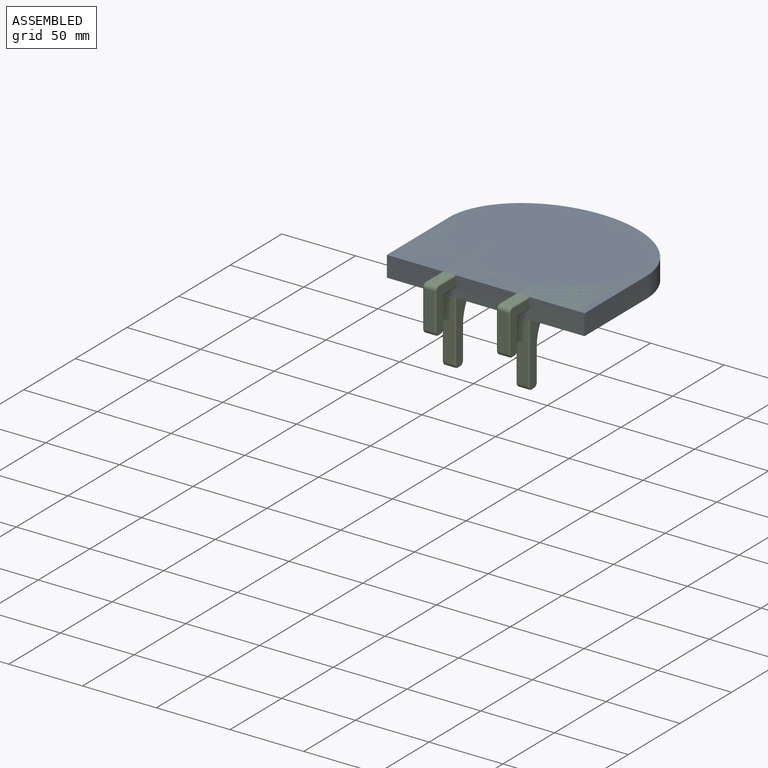
[diagram: assembled view]
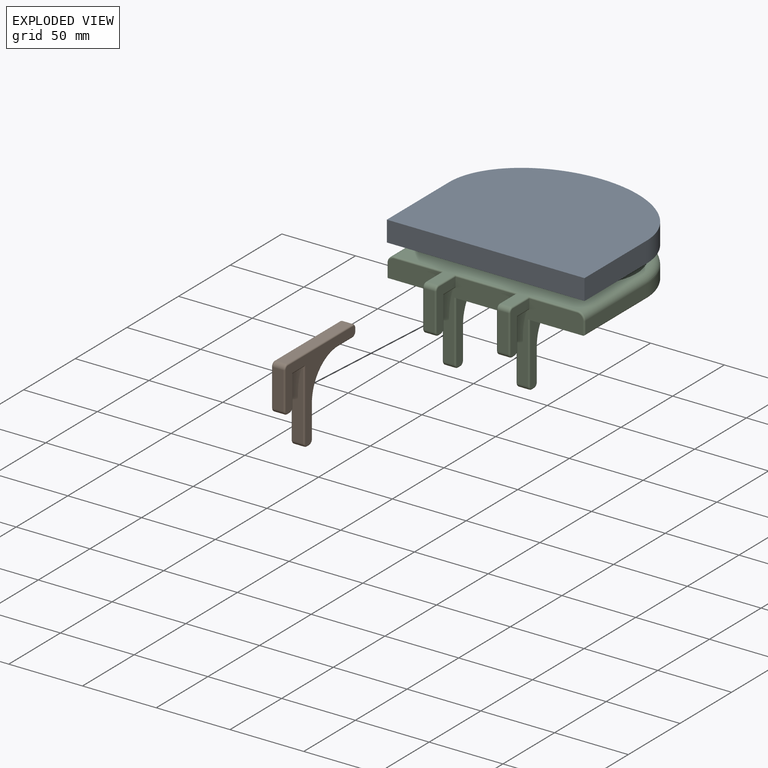
[diagram: exploded view]
GUIDED TOUR — FREECAD ASSEMBLY "PopBracket"

This assembly has 3 components, labeled P0..P2 below (a component is one placed body or linked part; the same part can appear more than once), held together by 0 modeled joints plus 2 derived contact edges. A joint is a constraint between two components; its type names the relative motion it leaves free:
  CONTACT — a derived adjacency edge — the two components touch in the source model (clearance under 2% of the assembly's diagonal); it is measured from the geometry, not a modeled constraint.
Axis/direction vectors are unit vectors and 'through' points are millimeter coordinates, both in the assembly's world frame.

MATES
  1. CONTACT "contact_0_2": P0 <-> P2, contact direction (0.000, 0.000, -1.000) through (12.44, 129.95, -13.85) mm (derived from contact, not a modeled constraint)
  2. CONTACT "contact_1_2": P1 <-> P2, contact direction (0.516, 0.786, 0.341) through (-29.45, 0.68, -28.00) mm (derived from contact, not a modeled constraint)

ASSEMBLY ORDER
  1. P2 — the base component [order heuristic]
  2. P0 [order heuristic]
  3. P1 [order heuristic]
Order-tag legend:
  [order heuristic] — this assembly is geometrically interlocked (no collision-free removal order exists), so components are listed in mate-graph order; insertion feasibility is not verified.

Of the 3 components, 3 carry a construction recipe — the FreeCAD feature program (sketches with constraints, then the solid features that consume them) that regenerates the part from scratch, quoted from this document or from the linked companion document it references; the rest are supplied as boundary geometry only. The tour below walks the components in assembly order: each is shown spotlighted twice — in the assembled view, then in the exploded view, where a leader line traces a displaced component back to its assembled socket (components that stay in place when exploded have no leader line; saturated green if recipe-attached, orange if geometry-only; every other component desaturated gray) — followed by its recipe or geometry summary and the mates that hold it.
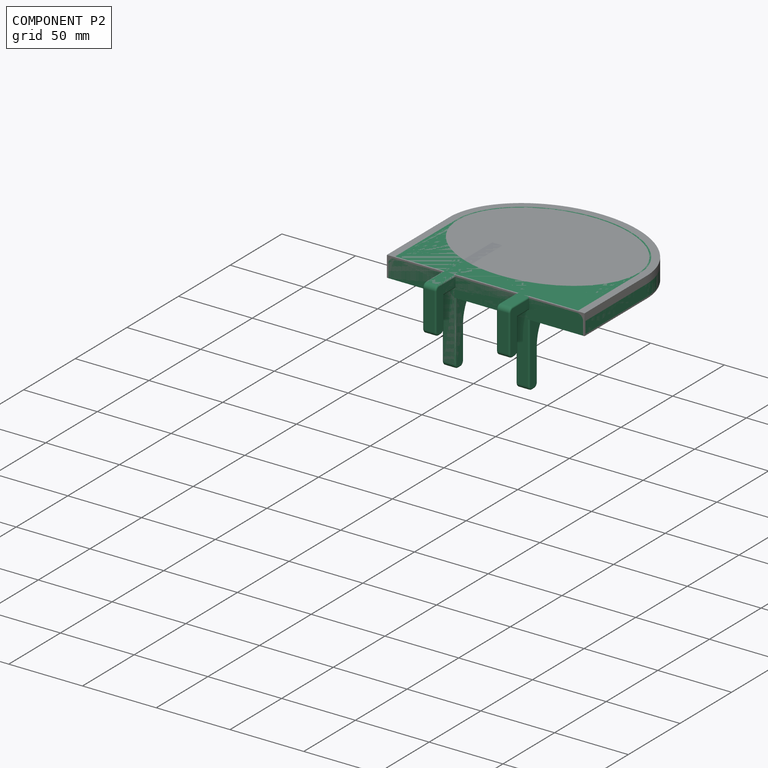
[diagram: component P2 — assembled]
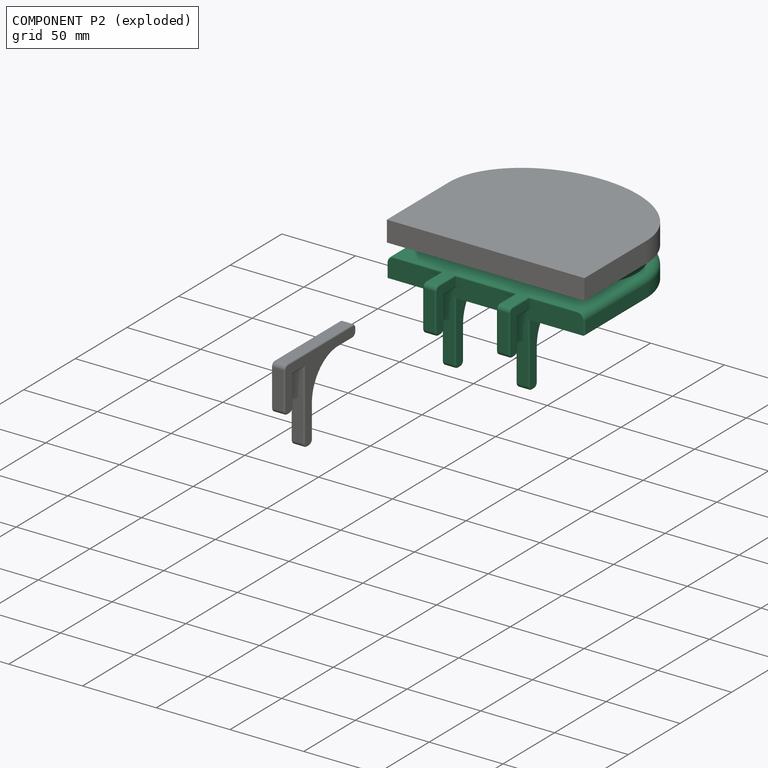
[diagram: component P2 — exploded]
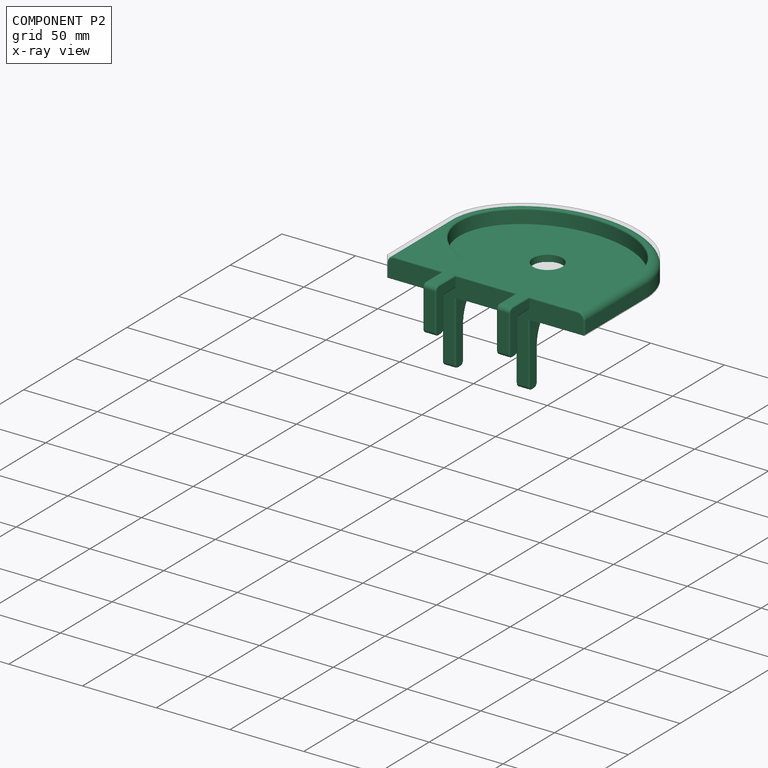
[diagram: component P2 — x-ray view]
COMPONENT P2 — recipe-attached ("ActionFigureStandPart", modeled in this document).
Held by: resting contact with P0 (derived edge); resting contact with P1 (derived edge).
Construction recipe (the document's own serialized feature program — sketch geometry with constraints, then the solid features built on it; lengths are millimeters unless a unit is written):

FEATURE [PartDesign::FeatureBase] BaseFeature
  BaseFeature = -> Fusion
  Suppressed = false
FEATURE [Sketcher::SketchObject] Sketch002  label="HoleSketch"
  ArcFitTolerance = 0
  AttachmentSupport = -> [BaseFeature]
  ExternalGeometry = -> [BaseFeature]
  FullyConstrained = true
  MakeInternals = false
  MapMode = 2
  expr: Constraints[5] = <<Spreadsheet>>.width
  expr: Constraints[7] = <<Spreadsheet>>.depth
  sketch-geometry (5):
    g0: Ellipse CenterX=0 CenterY=79 CenterZ=0 NormalX=0 NormalY=0 NormalZ=1 MajorRadius=60 MinorRadius=45 AngleXU=-3.14159
    g1: LineSegment [constr] StartX=-60 StartY=79 StartZ=0 EndX=60 EndY=79 EndZ=0
    g2: LineSegment [constr] StartX=-2e-16 StartY=34 StartZ=0 EndX=2e-16 EndY=124 EndZ=0
    g3: GeomPoint [constr] X=-39.6863 Y=79 Z=0
    g4: GeomPoint [constr] X=39.6863 Y=79 Z=0
  constraints (6):
    c: PointOnObject(g0,g-2)
    c: InternalAlignment(g1-g4 -> g0) x4
    c: DistanceX(g1,g1) = 120
    c: Horizontal(g1)
    c: DistanceY(g2,g2) = 90
    c: Horizontal(g0,g-3)
FEATURE [PartDesign::Pocket] Pocket  label="ActionFigureBasePocket"
  BaseFeature = -> BaseFeature
  Direction = (0,0,-1)
  Length = 9.6
  Length2 = 5
  Profile = -> Sketch002
  ReferenceAxis = -> Sketch002 [N_Axis]
  Suppressed = false
  Type = 0
FEATURE [Sketcher::SketchObject] Sketch003  label="EasyRemovalHole"
  ArcFitTolerance = 0
  AttachmentSupport = -> [Pocket]
  ExternalGeometry = -> [Sketch002]
  FullyConstrained = true
  MakeInternals = false
  MapMode = 5
  Placement = pos=(0,0,-9.6) rot=(0,0,1;0rad)
  sketch-geometry (1):
    g0: Circle CenterX=0 CenterY=79 CenterZ=0 NormalX=0 NormalY=0 NormalZ=1 AngleXU=0 Radius=10
  constraints (2):
    c: Diameter(g0) = 20
    c: Coincident(g0,g-3)
FEATURE [PartDesign::Pocket] Pocket001  label="RemovalHolePocket"
  BaseFeature = -> Pocket
  Direction = (0,0,-1)
  Length = 5
  Length2 = 5
  Profile = -> Sketch003
  ReferenceAxis = -> Sketch003 [N_Axis]
  Suppressed = false
  Type = 1
FEATURE [PartDesign::Fillet] Fillet001
  Base = -> Pocket001 [Edge43]
  BaseFeature = -> Pocket001
  Radius = 5
  SupportTransform = false
  Suppressed = false
  UseAllEdges = false
FEATURE [PartDesign::Fillet] Fillet002
  Base = -> Fillet001 [Edge13,Edge1,Edge8,Edge9,Edge72]
  BaseFeature = -> Fillet001
  Radius = 1
  SupportTransform = false
  Suppressed = false
  UseAllEdges = false
FEATURE [PartDesign::Body] Body002  label="Body"
  AllowCompound = false
  BaseFeature = -> Fusion
  Group = -> [BaseFeature,Sketch002,Sketch003,Pocket,Pocket001,Fillet001,Fillet002]
  Origin = -> Origin003
  Tip = -> Fillet002
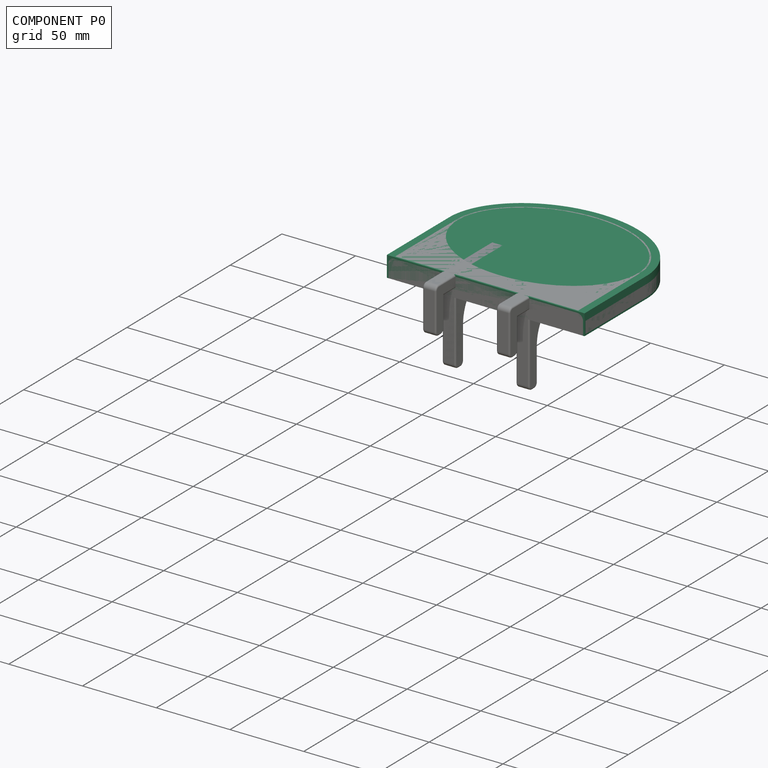
[diagram: component P0 — assembled]
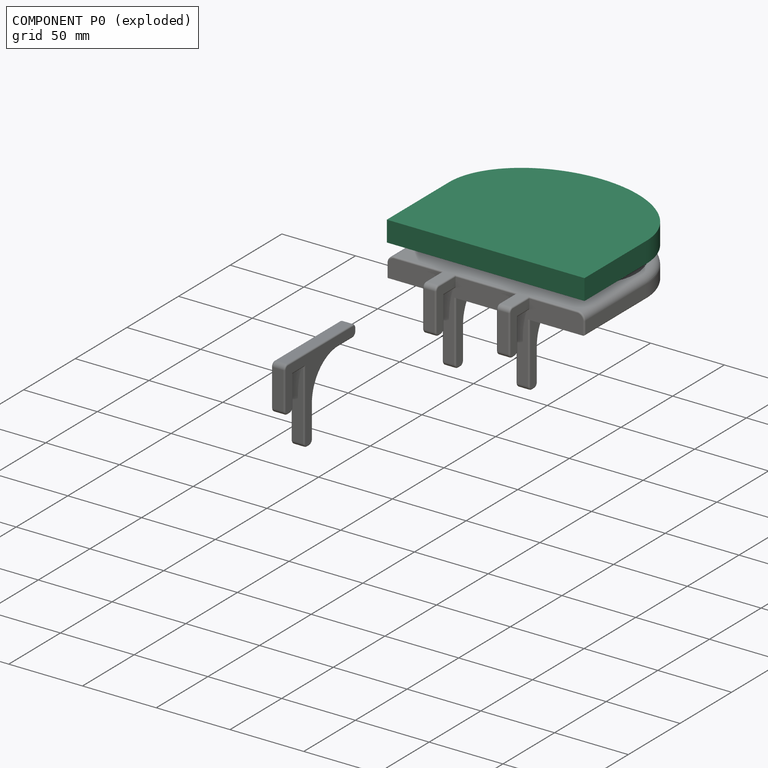
[diagram: component P0 — exploded]
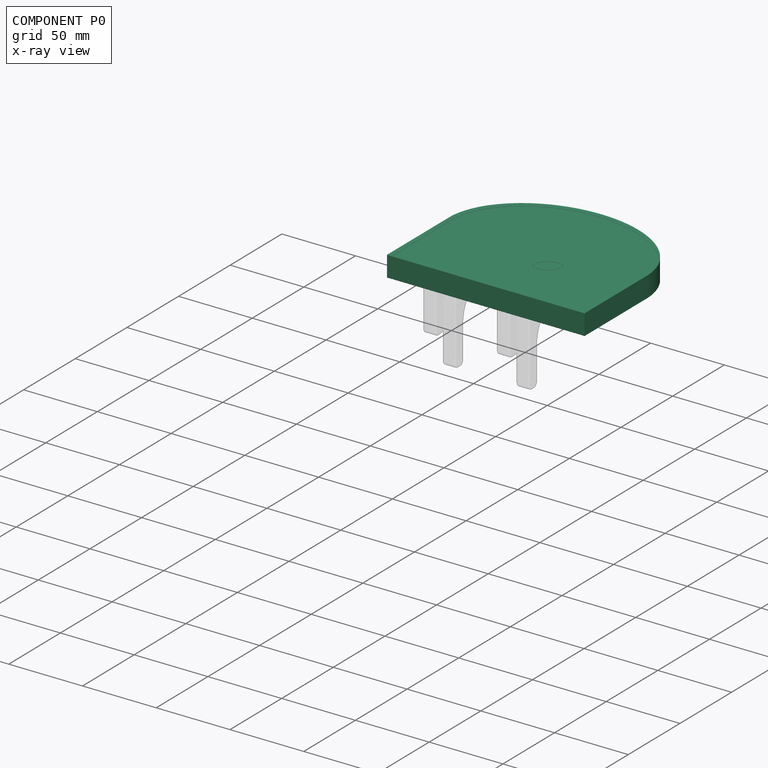
[diagram: component P0 — x-ray view]
COMPONENT P0 — recipe-attached ("PlateauBody", modeled in this document).
Held by: resting contact with P2 (derived edge).
Construction recipe (the document's own serialized feature program — sketch geometry with constraints, then the solid features built on it; lengths are millimeters unless a unit is written):

FEATURE [Sketcher::SketchObject] Sketch001  label="PlateauBodySketch"
  ArcFitTolerance = 0
  AttachmentSupport = -> [XY_Plane002]
  FullyConstrained = true
  MakeInternals = false
  MapMode = 5
  expr: Constraints[23] = <<Spreadsheet>>.depth
  expr: Constraints[24] = <<Spreadsheet>>.width
  expr: Constraints[5] = <<Spreadsheet>>.depth / 2 + 15
  expr: Constraints[8] = <<Spreadsheet>>.width + 14
  sketch-geometry (17):
    g0: LineSegment StartX=-67 StartY=79 StartZ=0 EndX=-67 EndY=19 EndZ=0
    g1: LineSegment StartX=-67 StartY=19 StartZ=0 EndX=67 EndY=19 EndZ=0
    g2: LineSegment StartX=67 StartY=19 StartZ=0 EndX=67 EndY=79 EndZ=0
    g3: LineSegment [constr] StartX=-67 StartY=19 StartZ=0 EndX=0 EndY=0 EndZ=0
    g4: LineSegment [constr] StartX=0 StartY=0 StartZ=0 EndX=67 EndY=19 EndZ=0
    g5: LineSegment [constr] StartX=-67 StartY=79 StartZ=0 EndX=67 EndY=79 EndZ=0
    g6: GeomPoint [constr] X=0 Y=79 Z=0
    g7: Ellipse [constr] CenterX=0 CenterY=79 CenterZ=0 NormalX=0 NormalY=0 NormalZ=1 MajorRadius=60 MinorRadius=45 AngleXU=0
    g8: LineSegment [constr] StartX=60 StartY=79 StartZ=0 EndX=-60 EndY=79 EndZ=0
    g9: LineSegment [constr] StartX=0 StartY=124 StartZ=0 EndX=0 EndY=34 EndZ=0
    g10: GeomPoint [constr] X=39.6863 Y=79 Z=0
    g11: GeomPoint [constr] X=-39.6863 Y=79 Z=0
    g12: ArcOfEllipse CenterX=0 CenterY=79 CenterZ=0 NormalX=0 NormalY=0 NormalZ=1 MajorRadius=67 MinorRadius=52 AngleXU=-3.14159 StartAngle=3.14159 EndAngle=6.28319
    g13: LineSegment [constr] StartX=-67 StartY=79 StartZ=0 EndX=67 EndY=79 EndZ=0
    g14: LineSegment [constr] StartX=0 StartY=27 StartZ=0 EndX=0 EndY=131 EndZ=0
    g15: GeomPoint [constr] X=-42.2493 Y=79 Z=0
    g16: GeomPoint [constr] X=42.2493 Y=79 Z=0
  constraints (29):
    c: Coincident(g0,g1)
    c: Horizontal(g1)
    c: Coincident(g1,g2)
    c: Vertical(g2)
    c: DistanceY(g-1,g0) = 19
    c: DistanceY(g0,g0) = 60
    c: Vertical(g0)
    c: Equal(g0,g2)
    c: DistanceX(g1,g1) = 134
    c: Coincident(g3,g0)
    c: Coincident(g3,g-1)
    c: Coincident(g4,g3)
    c: Coincident(g4,g1)
    c: Equal(g3,g4)
    c: Coincident(g5,g0)
    c: Coincident(g5,g2)
    c: PointOnObject(g6,g-2)
    c: PointOnObject(g6,g5)
    c: InternalAlignment(g8-g11 -> g7) x4
    c: Coincident(g7,g6)
    c: DistanceY(g9,g9) = 90
    c: DistanceX(g8,g8) = 120
    c: Horizontal(g8)
    c: InternalAlignment(g13-g16 -> g12) x4
    c: Coincident(g12,g6)
    c: Coincident(g13,g0)
    c: DistanceY(g9,g14) = 7
    c: PointOnObject(g12,g5)
    c: PointOnObject(g12,g5)
FEATURE [PartDesign::Pad] Pad001  label="PlateauPad"
  Direction = (0,0,1)
  Length = 14
  Length2 = 10
  Profile = -> Sketch001
  ReferenceAxis = -> Sketch001 [N_Axis]
  Reversed = true
  Suppressed = false
  Type = 0
FEATURE [PartDesign::Body] Body001  label="PlateauBody"
  AllowCompound = false
  Group = -> [Sketch001,Pad001]
  Origin = -> Origin002
  Tip = -> Pad001
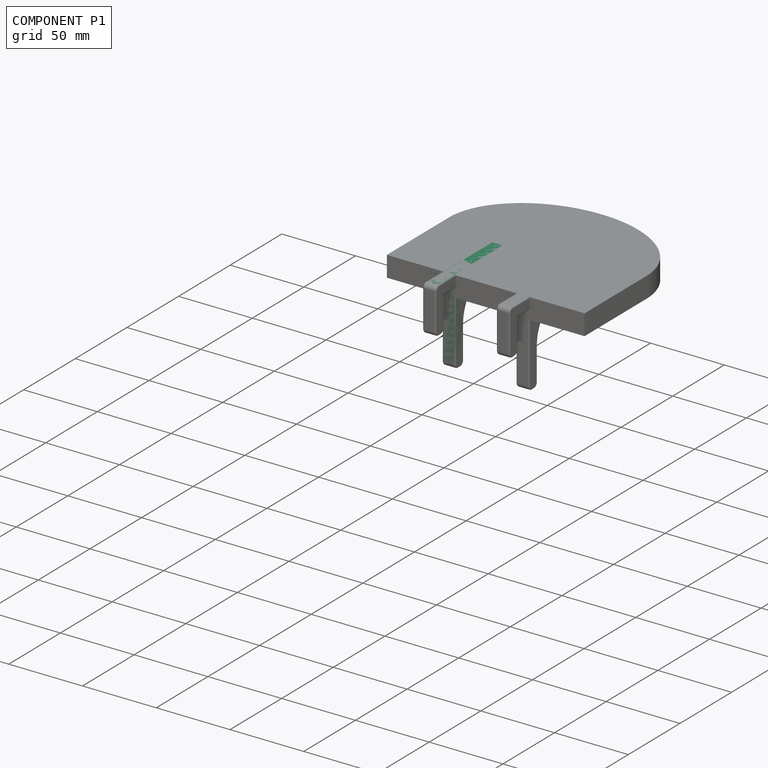
[diagram: component P1 — assembled]
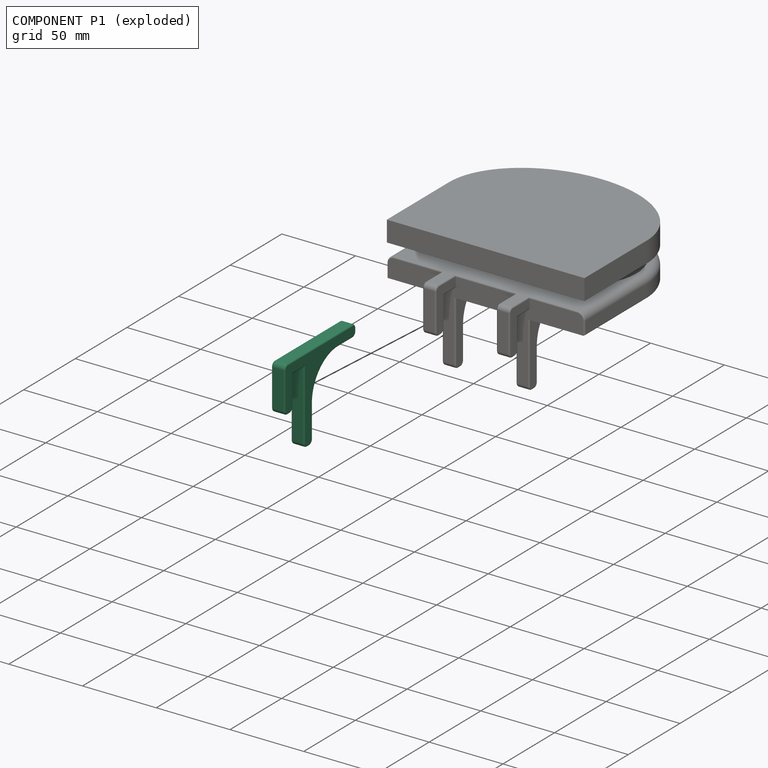
[diagram: component P1 — exploded]
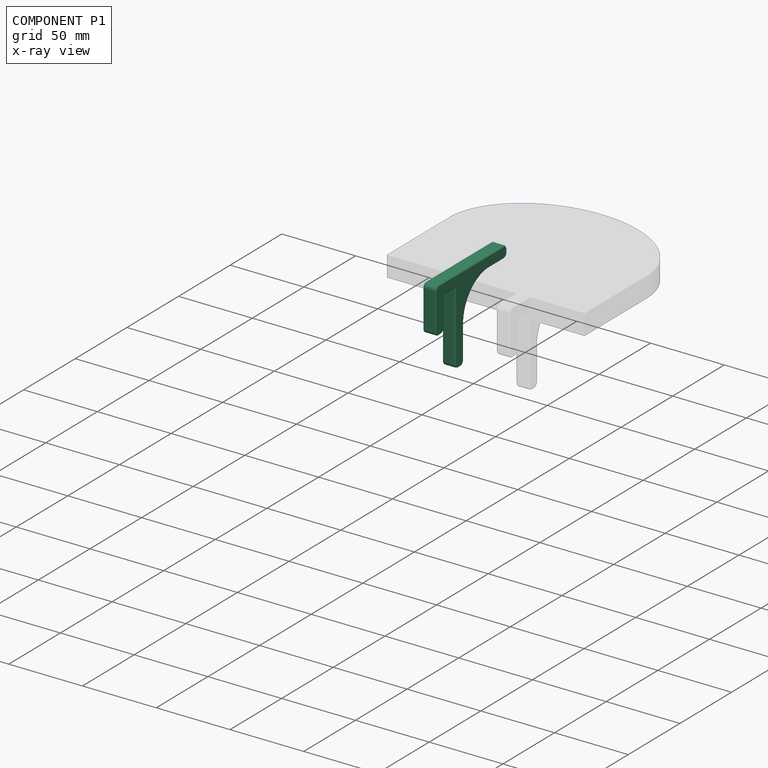
[diagram: component P1 — x-ray view]
COMPONENT P1 — recipe-attached ("HookBody001", modeled in this document).
Held by: resting contact with P2 (derived edge).
Construction recipe (the document's own serialized feature program — sketch geometry with constraints, then the solid features built on it; lengths are millimeters unless a unit is written):

FEATURE [Sketcher::SketchObject] Sketch  label="HookSketch"
  ArcFitTolerance = 0
  AttachmentSupport = -> [YZ_Plane001]
  FullyConstrained = true
  MakeInternals = false
  MapMode = 5
  Placement = pos=(0,0,0) rot=(0.57735,0.57735,0.57735;2.0944rad)
  sketch-geometry (28):
    g0: LineSegment StartX=3 StartY=0 StartZ=0 EndX=66 EndY=0 EndZ=0
    g1: LineSegment StartX=69 StartY=-3 StartZ=0 EndX=69 EndY=-5 EndZ=0
    g2: LineSegment StartX=66 StartY=-8 StartZ=0 EndX=52 EndY=-8 EndZ=0
    g3: LineSegment StartX=27 StartY=-33 StartZ=0 EndX=27 EndY=-55 EndZ=0
    g4: LineSegment StartX=24 StartY=-58 StartZ=0 EndX=22 EndY=-58 EndZ=0
    g5: LineSegment StartX=19 StartY=-55 StartZ=0 EndX=19 EndY=-8 EndZ=0
    g6: LineSegment StartX=19 StartY=-8 StartZ=0 EndX=8 EndY=-8 EndZ=0
    g7: LineSegment StartX=8 StartY=-8 StartZ=0 EndX=8 EndY=-28 EndZ=0
    g8: LineSegment StartX=5 StartY=-31 StartZ=0 EndX=3 EndY=-31 EndZ=0
    g9: LineSegment StartX=0 StartY=-28 StartZ=0 EndX=0 EndY=-3 EndZ=0
    g10: ArcOfCircle CenterX=3 CenterY=-3 CenterZ=0 NormalX=0 NormalY=0 NormalZ=1 AngleXU=0 Radius=3 StartAngle=1.5708 EndAngle=3.14159
    g11: GeomPoint [constr] X=0 Y=0 Z=0
    g12: ArcOfCircle CenterX=66 CenterY=-3 CenterZ=0 NormalX=0 NormalY=0 NormalZ=1 AngleXU=0 Radius=3 StartAngle=0 EndAngle=1.5708
    g13: GeomPoint [constr] X=69 Y=0 Z=0
    g14: ArcOfCircle CenterX=66 CenterY=-5 CenterZ=0 NormalX=0 NormalY=0 NormalZ=1 AngleXU=0 Radius=3 StartAngle=4.71239 EndAngle=6.28319
    g15: GeomPoint [constr] X=69 Y=-8 Z=0
    g16: ArcOfCircle CenterX=52 CenterY=-33 CenterZ=0 NormalX=0 NormalY=0 NormalZ=1 AngleXU=0 Radius=25 StartAngle=1.5708 EndAngle=3.14159
    g17: GeomPoint [constr] X=27 Y=-8 Z=0
    g18: ArcOfCircle CenterX=24 CenterY=-55 CenterZ=0 NormalX=0 NormalY=0 NormalZ=1 AngleXU=0 Radius=3 StartAngle=4.71239 EndAngle=6.28319
    g19: GeomPoint [constr] X=27 Y=-58 Z=0
    g20: ArcOfCircle CenterX=22 CenterY=-55 CenterZ=0 NormalX=0 NormalY=0 NormalZ=1 AngleXU=0 Radius=3 StartAngle=3.14159 EndAngle=4.71239
    g21: GeomPoint [constr] X=19 Y=-58 Z=0
    g22: GeomPoint [constr] X=19 Y=-8 Z=0
    g23: GeomPoint [constr] X=8 Y=-8 Z=0
    g24: ArcOfCircle CenterX=5 CenterY=-28 CenterZ=0 NormalX=0 NormalY=0 NormalZ=1 AngleXU=0 Radius=3 StartAngle=4.71239 EndAngle=6.28319
    g25: GeomPoint [constr] X=8 Y=-31 Z=0
    g26: ArcOfCircle CenterX=3 CenterY=-28 CenterZ=0 NormalX=0 NormalY=0 NormalZ=1 AngleXU=0 Radius=3 StartAngle=3.14159 EndAngle=4.71239
    g27: GeomPoint [constr] X=0 Y=-31 Z=0
  constraints (64):
    c: Coincident(g-1,g11)
    c: PointOnObject(g13,g-1)
    c: Vertical(g1)
    c: Horizontal(g2)
    c: Vertical(g3)
    c: Horizontal(g4)
    c: Vertical(g5)
    c: Horizontal(g6)
    c: Vertical(g7)
    c: PointOnObject(g27,g-2)
    c: Horizontal(g8)
    c: DistanceX(g21,g19) = 8
    c: DistanceX(g27,g25) = 8
    c: DistanceY(g19,g17) = 50
    c: DistanceY(g25,g23) = 23
    c: DistanceY(g15,g13) = 8
    c: DistanceY(g27,g11) = 31
    c: PointOnObject(g11,g9)
    c: PointOnObject(g11,g0)
    c: Tangent(g9,g10) = 1.5708
    c: Tangent(g0,g10) = 1.5708
    c: PointOnObject(g13,g0)
    c: PointOnObject(g13,g1)
    c: Tangent(g0,g12) = 1.5708
    c: Tangent(g1,g12) = 1.5708
    c: PointOnObject(g15,g1)
    c: PointOnObject(g15,g2)
    c: Tangent(g1,g14) = 1.5708
    c: Tangent(g2,g14) = 1.5708
    c: PointOnObject(g17,g2)
    c: PointOnObject(g17,g3)
    c: Tangent(g2,g16) = -1.5708
    c: Tangent(g3,g16) = -1.5708
    c: PointOnObject(g19,g3)
    c: PointOnObject(g19,g4)
    c: Tangent(g3,g18) = 1.5708
    c: Tangent(g4,g18) = 1.5708
    c: PointOnObject(g21,g4)
    c: PointOnObject(g21,g5)
    c: Tangent(g4,g20) = 1.5708
    c: Tangent(g5,g20) = 1.5708
    c: PointOnObject(g22,g5)
    c: PointOnObject(g22,g6)
    c: PointOnObject(g25,g7)
    c: PointOnObject(g25,g8)
    c: Tangent(g7,g24) = 1.5708
    c: Tangent(g8,g24) = 1.5708
    c: PointOnObject(g27,g8)
    c: PointOnObject(g27,g9)
    c: Tangent(g8,g26) = 1.5708
    c: Tangent(g9,g26) = 1.5708
    c: Equal(g10,g12)
    c: Equal(g10,g14)
    c: Equal(g10,g18)
    c: Equal(g10,g20)
    c: Equal(g10,g24)
    c: Equal(g10,g26)
    c: Radius(g10) = 3
    c: Radius(g16) = 25
    c: DistanceX(g6,g6) = 11
    c: Coincident(g7,g23)
    c: Coincident(g5,g6)
    c: Coincident(g7,g6)
    c: DistanceX(g5,g1) = 50
FEATURE [PartDesign::Pad] Pad  label="HookPad"
  Direction = (1,0,0)
  Length = 9
  Length2 = 10
  Midplane = true
  Placement = pos=(0,0,0) rot=(1,1,1;2.0944rad)
  Profile = -> Sketch
  ReferenceAxis = -> Sketch [N_Axis]
  Suppressed = false
  Type = 0
FEATURE [PartDesign::Fillet] Fillet  label="HookBodyFillet"
  Base = -> Pad [Face20,Face19]
  BaseFeature = -> Pad
  Placement = pos=(0,0,0) rot=(1,1,1;2.0944rad)
  Radius = 1
  SupportTransform = false
  Suppressed = false
  UseAllEdges = false
FEATURE [PartDesign::Body] Body  label="HookBody"
  AllowCompound = false
  Group = -> [Sketch,Pad,Fillet]
  Origin = -> Origin001
  Placement = pos=(-25,0,0) rot=(0,0,1;0rad)
  Tip = -> Fillet
PROVENANCE & LICENSES
Assembly and component geometry: a FreeCAD (.FCStd) document from a public repository crawl; components, placements and joints were extracted with FreeCAD and each solid tessellated.
Construction recipes: the document's own serialized feature recipes (and, for linked parts, the recipes of companion documents from the same project).
License: other.
Joints: native FreeCAD joints and A2plus constraints are mapped to standard mate types; edges marked 'derived from contact' connect touching components and are measured from the geometry, not modeled.
Verification: 3 of this assembly's 3 components carry a construction recipe (3 from this document itself); the rest are geometry-only. Every component's tessellation passed the extraction mesh gates (mesh-volume checksum against the B-rep where available, bounding-box inflation <= 2%).
Renders: orthographic iso camera (az 35 / el 25); the floor grid conveys scale (grid pitch printed in each image; no ruler). In the exploded view each component is displaced by its stored offset vector: the offsets alone carry the explosion direction (mate normal/axis signs are not orientation cues and do not encode it), and separation distances are assigned per mate-chain, not proportionally to assembly-order depth.
